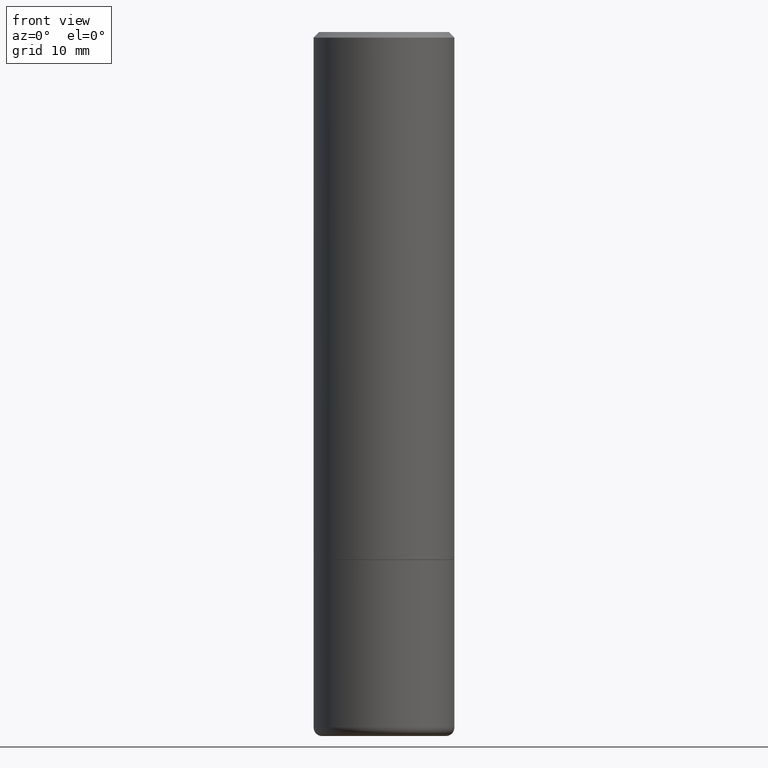
[diagram: clean part render]
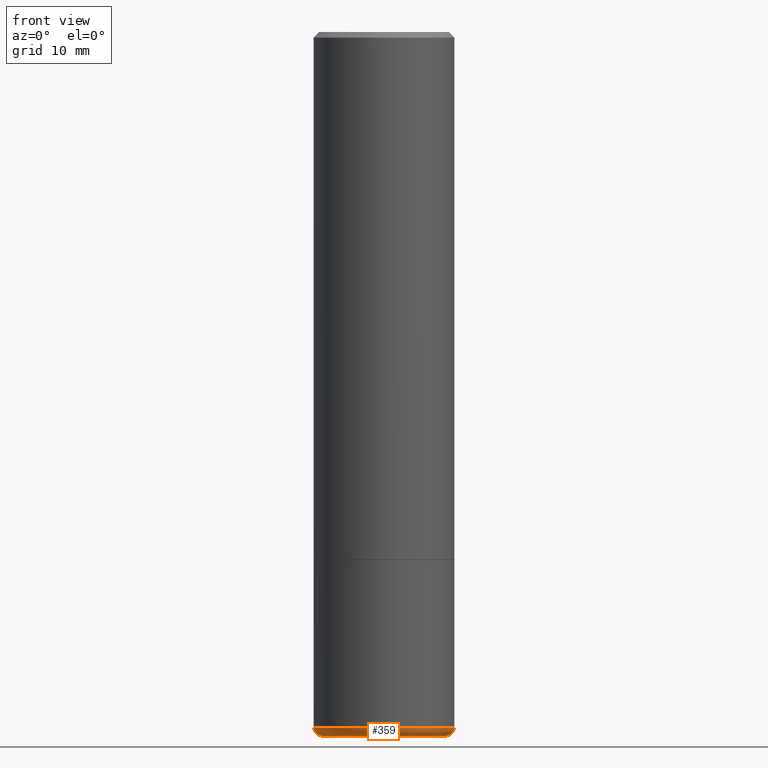
[diagram: same view with one face highlighted and labeled with its STEP entity id]
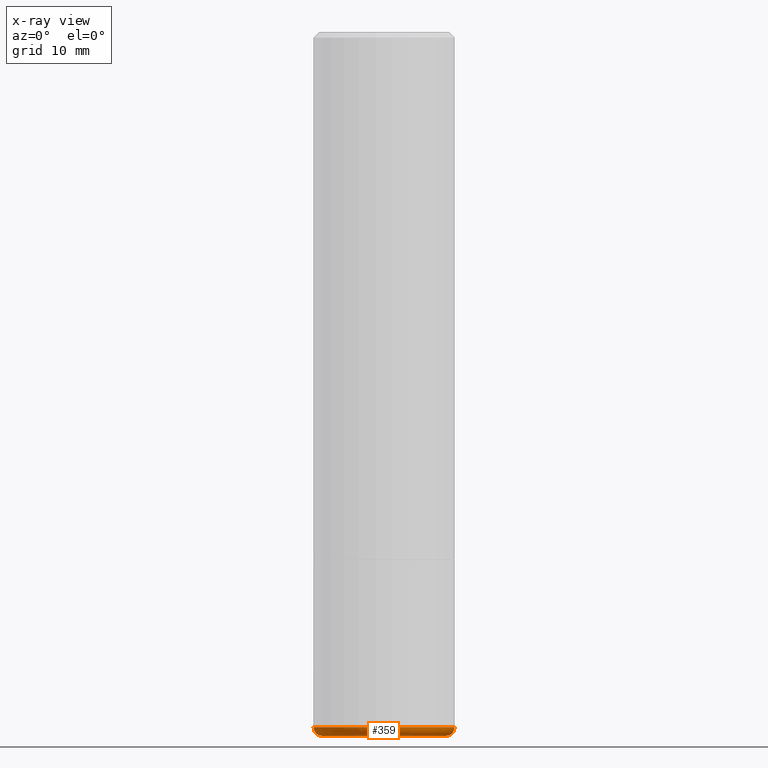
[diagram: x-ray of the same camera — body ghosted, the highlighted face saturated]
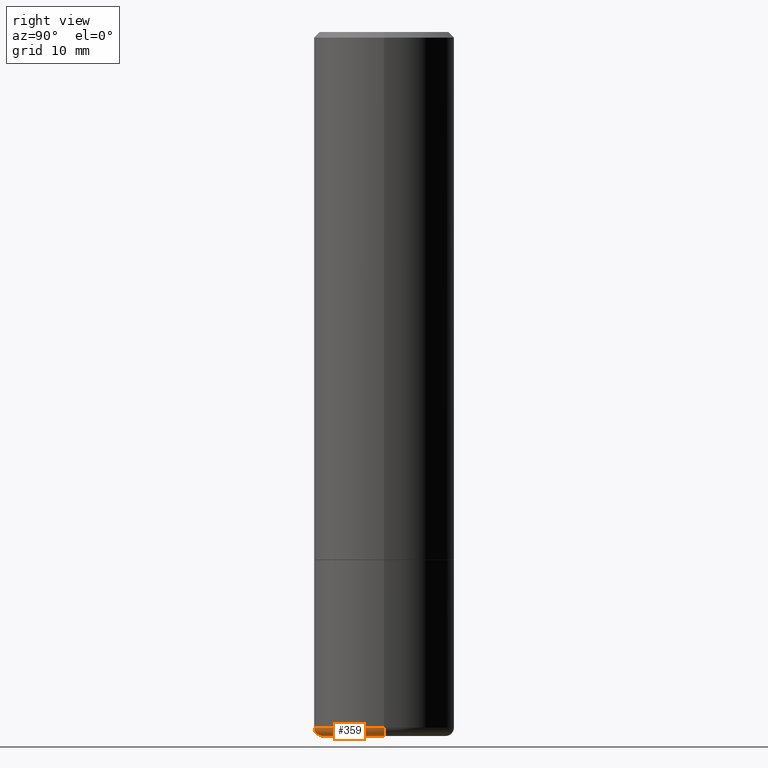
[diagram: same view with one face highlighted and labeled with its STEP entity id]
A machine part, front view. The second image highlights one B-rep face of the part: STEP entity #359.
The next image is the same camera in x-ray: the body ghosted, the highlighted face saturated — about 0% of this face is hidden behind the body in this view.
A second angle (right view) of the same face is appended — the face is thin or edge-on in the first view.
In plain terms, the highlighted toroidal blend (fillet) surface has major radius 5.588 mm and minor (blend) radius 0.762 mm.
Its self-contained STEP definition (entity closure, byte-faithful):
#14 = DIRECTION ( 'NONE',  ( 1.000000000000000000, -6.982962677686266711E-15, 0.000000000000000000 ) ) ;
#23 = CARTESIAN_POINT ( 'NONE',  ( -0.2194764278068804253, -7.196091690014936529E-15, -2.499995430854692113 ) ) ;
#34 = VERTEX_POINT ( 'NONE', #149 ) ;
#35 = AXIS2_PLACEMENT_3D ( 'NONE', #331, #259, #129 ) ;
#41 = EDGE_CURVE ( 'NONE', #130, #34, #427, .T. ) ;
#63 = FACE_OUTER_BOUND ( 'NONE', #157, .T. ) ;
#71 = EDGE_CURVE ( 'NONE', #414, #130, #267, .T. ) ;
#77 = ORIENTED_EDGE ( 'NONE', *, *, #41, .T. ) ;
#93 = ORIENTED_EDGE ( 'NONE', *, *, #425, .F. ) ;
#99 = CIRCLE ( 'NONE', #106, 0.2500000000000000000 ) ;
#106 = AXIS2_PLACEMENT_3D ( 'NONE', #430, #305, #329 ) ;
#129 = DIRECTION ( 'NONE',  ( 1.000000000000000000, -6.982962677686266711E-15, 4.883557194083113462E-29 ) ) ;
#130 = VERTEX_POINT ( 'NONE', #319 ) ;
#146 = TOROIDAL_SURFACE ( 'NONE', #35, 0.2199999999999999734, 0.03000000000000003011 ) ;
#149 = CARTESIAN_POINT ( 'NONE',  ( 0.2500000000000000000, -1.036969957636413667E-14, -2.470000000000000195 ) ) ;
#154 = CARTESIAN_POINT ( 'NONE',  ( -0.2500000000000000000, -6.847602067542320320E-15, -2.470000000000000195 ) ) ;
#156 = DIRECTION ( 'NONE',  ( 7.105427357601001859E-15, 1.000000000000000000, -3.491481338843145583E-15 ) ) ;
#157 = EDGE_LOOP ( 'NONE', ( #93, #340, #77, #241 ) ) ;
#178 = DIRECTION ( 'NONE',  ( 1.000000000000000000, -6.982962677686262766E-15, 0.000000000000000000 ) ) ;
#214 = DIRECTION ( 'NONE',  ( -6.982962677686266711E-15, -1.000000000000000000, 3.491481338843145583E-15 ) ) ;
#225 = AXIS2_PLACEMENT_3D ( 'NONE', #261, #156, #301 ) ;
#241 = ORIENTED_EDGE ( 'NONE', *, *, #342, .F. ) ;
#244 = DIRECTION ( 'NONE',  ( -2.445468806185136597E-29, 3.491481338843145583E-15, 1.000000000000000000 ) ) ;
#259 = DIRECTION ( 'NONE',  ( -2.445468806185136597E-29, 3.491481338843145583E-15, 1.000000000000000000 ) ) ;
#261 = CARTESIAN_POINT ( 'NONE',  ( -0.2199999999999999734, -7.060764888270350565E-15, -2.470000000000000195 ) ) ;
#267 = CIRCLE ( 'NONE', #282, 0.2194764278068817021 ) ;
#282 = AXIS2_PLACEMENT_3D ( 'NONE', #385, #244, #14 ) ;
#301 = DIRECTION ( 'NONE',  ( -1.000000000000000000, 7.105427357601017636E-15, 0.000000000000000000 ) ) ;
#305 = DIRECTION ( 'NONE',  ( -2.445468806185136597E-29, 3.491481338843145583E-15, 1.000000000000000000 ) ) ;
#319 = CARTESIAN_POINT ( 'NONE',  ( 0.2194764278068804253, -1.023440498754943821E-14, -2.499995430854692113 ) ) ;
#320 = VERTEX_POINT ( 'NONE', #154 ) ;
#329 = DIRECTION ( 'NONE',  ( 1.000000000000000000, -6.982962677686266711E-15, 0.000000000000000000 ) ) ;
#331 = CARTESIAN_POINT ( 'NONE',  ( 6.040307951277287977E-29, -8.623958906942569995E-15, -2.470000000000000195 ) ) ;
#340 = ORIENTED_EDGE ( 'NONE', *, *, #71, .T. ) ;
#342 = EDGE_CURVE ( 'NONE', #320, #34, #99, .T. ) ;
#344 = AXIS2_PLACEMENT_3D ( 'NONE', #423, #214, #178 ) ;
#359 = ADVANCED_FACE ( 'NONE', ( #63 ), #146, .T. ) ;
#385 = CARTESIAN_POINT ( 'NONE',  ( 6.113660841760519813E-29, -8.728687394022285715E-15, -2.499995430854692113 ) ) ;
#399 = CIRCLE ( 'NONE', #225, 0.03000000000000002318 ) ;
#414 = VERTEX_POINT ( 'NONE', #23 ) ;
#423 = CARTESIAN_POINT ( 'NONE',  ( 0.2199999999999999734, -1.016021069603354993E-14, -2.470000000000000195 ) ) ;
#425 = EDGE_CURVE ( 'NONE', #414, #320, #399, .T. ) ;
#427 = CIRCLE ( 'NONE', #344, 0.03000000000000002318 ) ;
#430 = CARTESIAN_POINT ( 'NONE',  ( 6.040307951277287977E-29, -8.623958906942569995E-15, -2.470000000000000195 ) ) ;